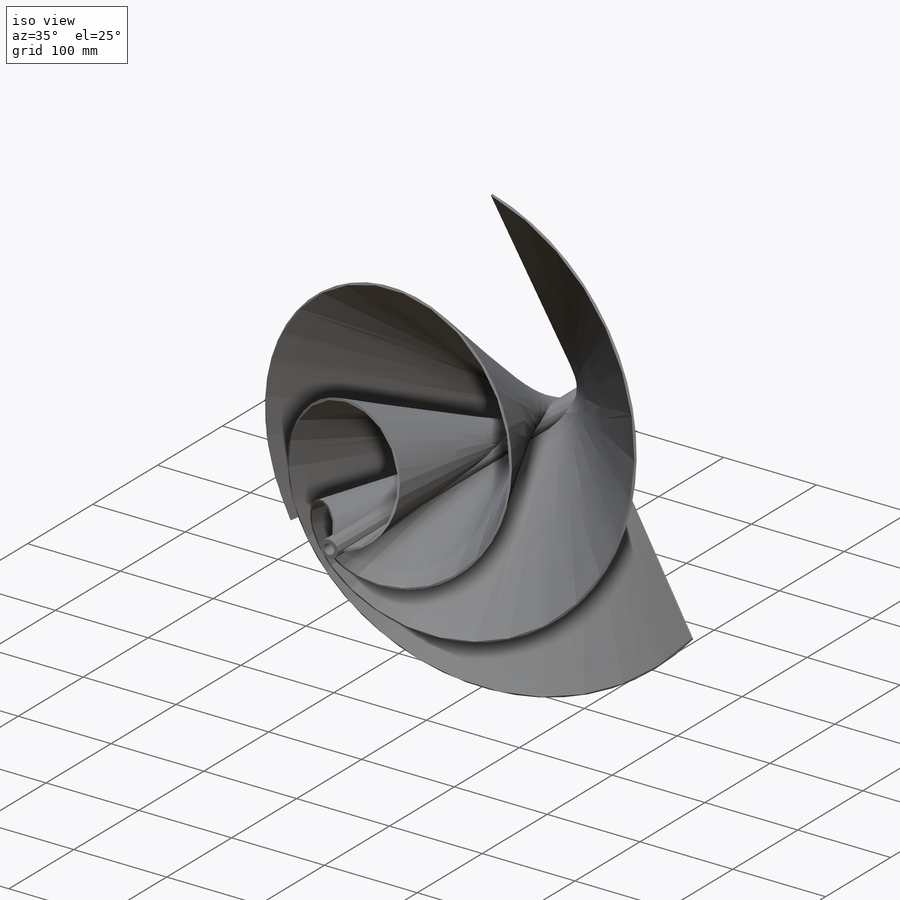
[diagram: iso view]
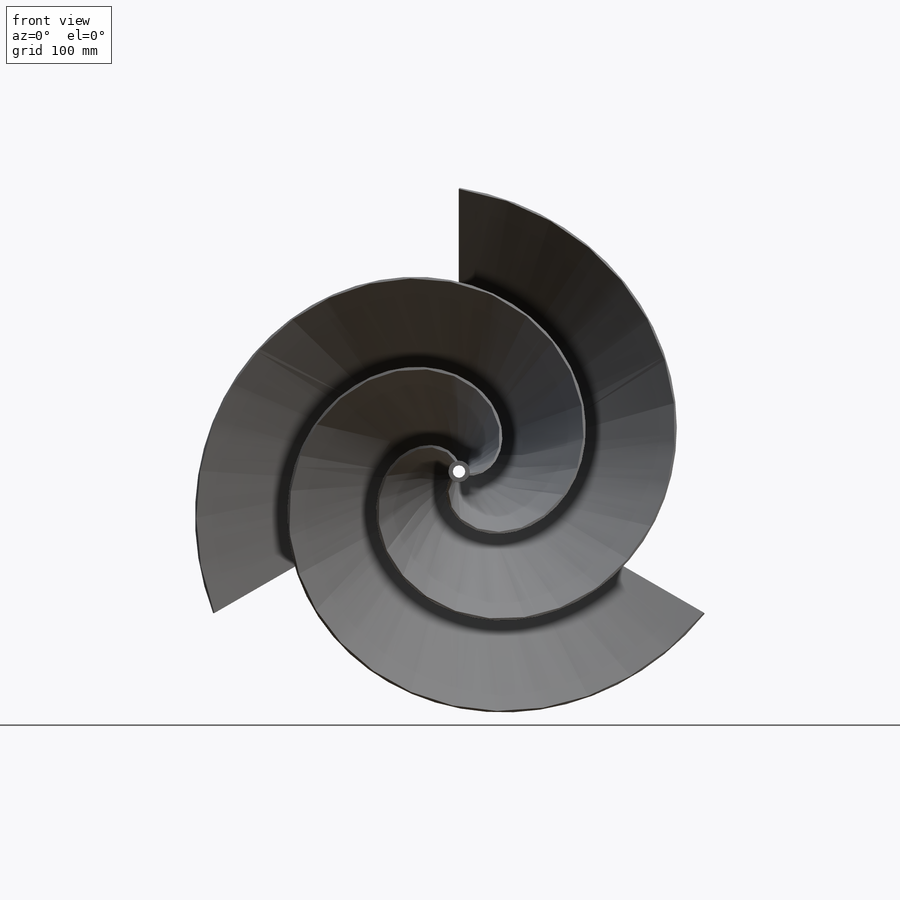
[diagram: front view]
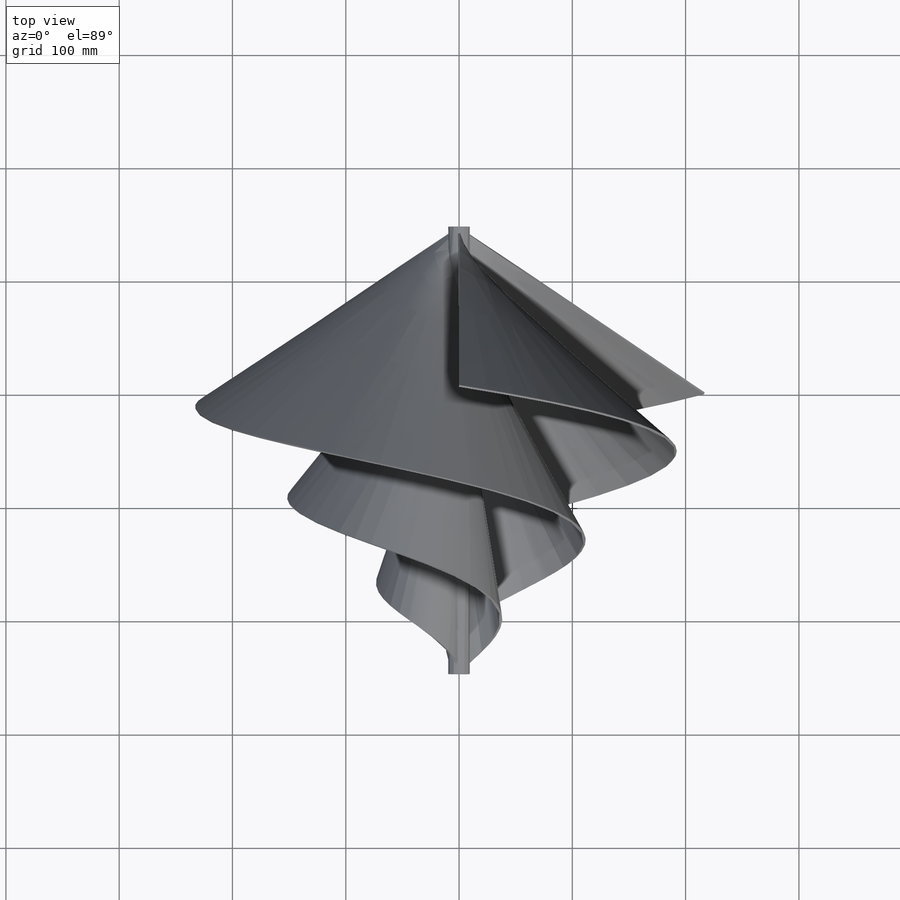
[diagram: top view]
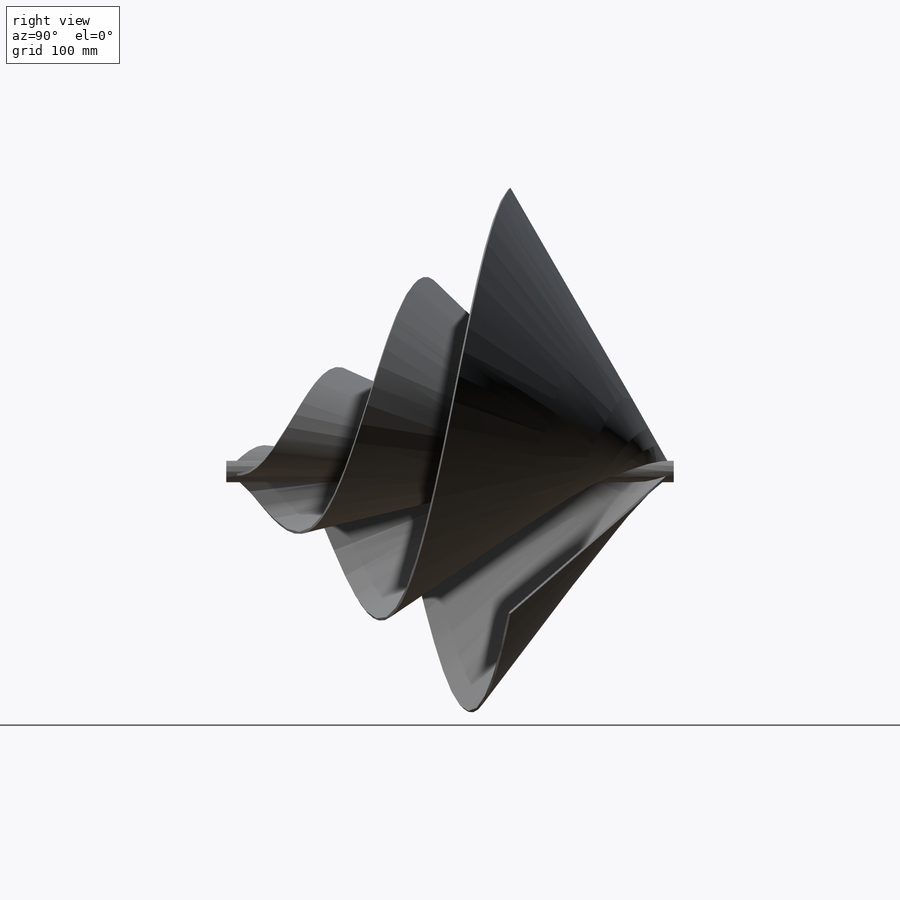
[diagram: right view]
SOLIDWORKS PART (.sldprt)
format: sldprt  version: not decoded by parser v0  size: 401,920 bytes
history: native  units: mm
features: sketch x4, material x1, helix x1, pattern_circular x1, surface_op x1 + 3 further entries (+12 scaffold rows collapsed)
feature tree (23):
  scaffold x12  (default folders/planes/origin — collapsed)
  material  "Material <not specified>"
  sketch  "Sketch1"  dims[D1=500.0mm]
  helix  "Helix/Spiral1"  Pitch=250mm
  sketch  "Sketch2"  dims[c1.D1=250.0mm c2.D1=30.0deg]
  sketch  "3DSketch1"  dims[c1.D1=~288.675135mm c2.D1=~318.872109mm c3.D1=~250.000005mm c4.D1=~363.126482mm]
  pattern_circular  "CirPattern1"  Count=3 Angle=360deg
  sketch  "Sketch3"  dims[D1=15.0mm]
  surface_op  "Surface-Extrude1"
  "Thicken2"
  "Thicken3"
  "Thicken4"
decode coverage: 6 of 7 modeling features carry decoded parameters; 3 rows unclassified (native names shown)
note: ~ marks probable driven/reference dimensions
note: suppression state not decoded; provenance and decode notes live in map.json
